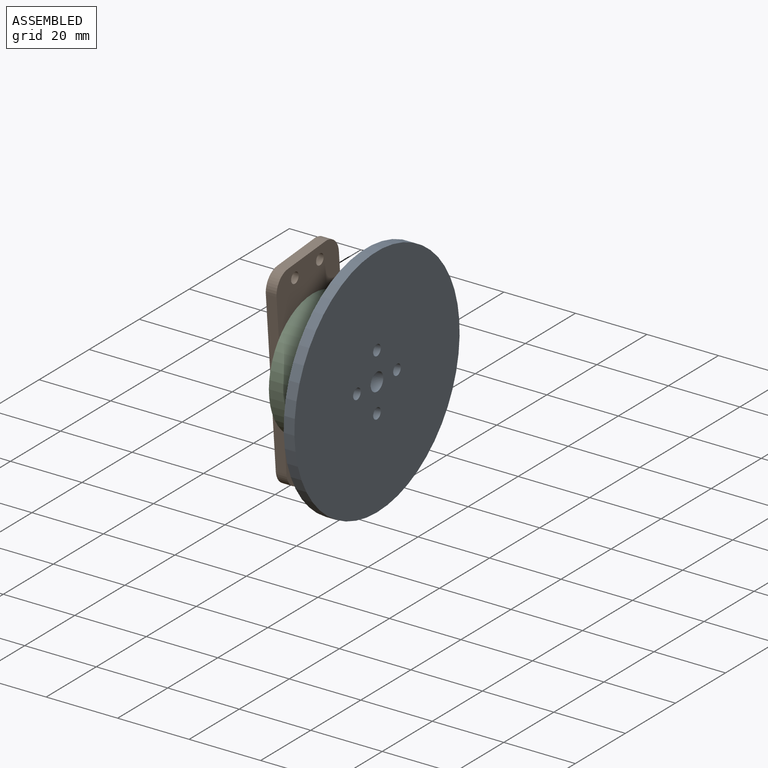
[diagram: assembled view]
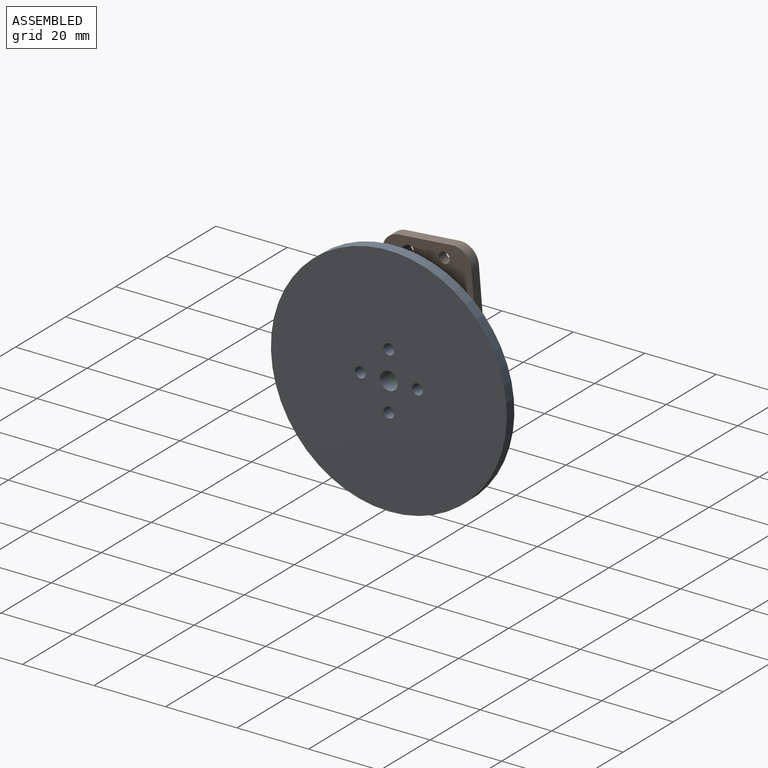
[diagram: assembled view, second angle]
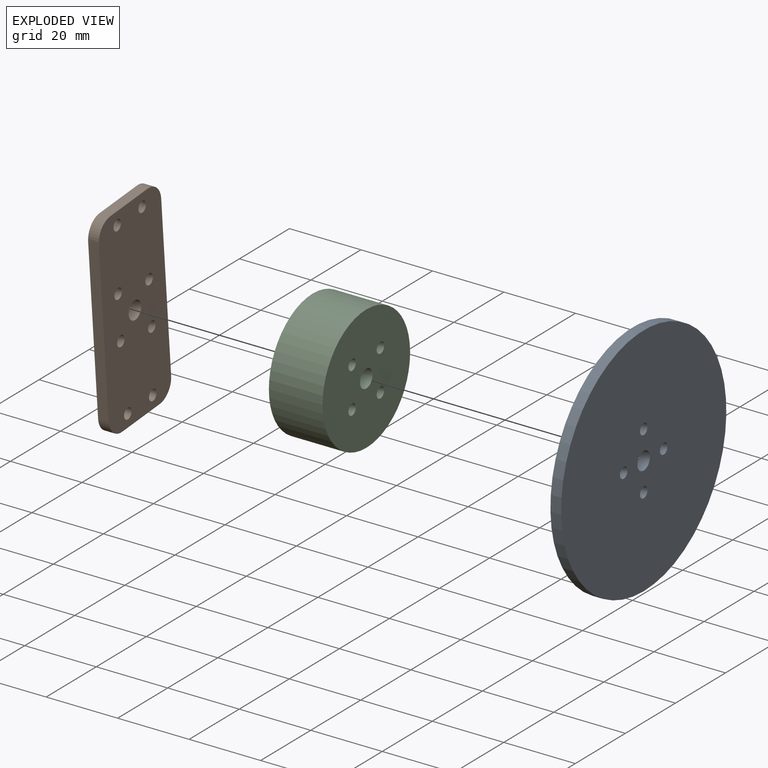
[diagram: exploded view]
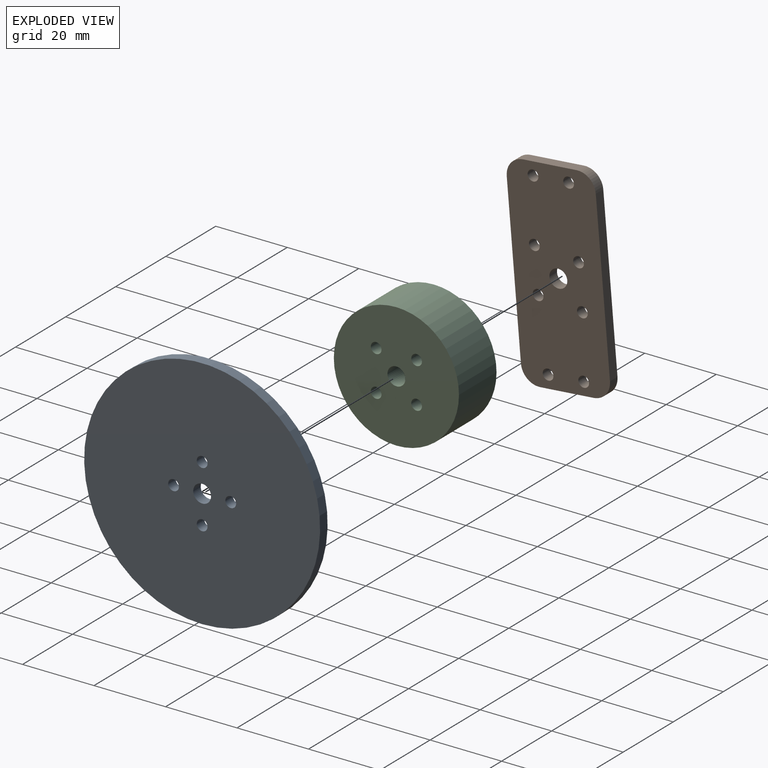
[diagram: exploded view, second angle]
ASSEMBLY  parts=3 mates=3
PART A: 8 faces, bbox 3x66x66 mm
  f0: cylinder r=1.5mm len=3mm, axis (-1,0,0), area 28.2mm2, adj f6,f7
  f1: cylinder r=1.5mm len=3mm, axis (-1,0,0), area 28.2mm2, adj f6,f7
  f2: cylinder r=1.5mm len=3mm, axis (-1,0,0), area 28.2mm2, adj f6,f7
  f3: cylinder r=1.5mm len=3mm, axis (-1,0,0), area 28.2mm2, adj f6,f7
  f4: cylinder r=2.5mm len=5mm, axis (-1,0,0), area 47.1mm2, adj f6,f7
  f5: cylinder r=33mm len=66mm, axis (-1,0,0), area 621.5mm2, adj f6,f7
  f6: plane 66x66mm, normal (1,0,0), area 3373.3mm2, adj f0,f1,f2,f3,f4,f5
  f7: plane 66x66mm, normal (-1,0,0), area 3373.3mm2, adj f0,f1,f2,f3,f4,f5
PART B: 19 faces, bbox 3x56.5x25 mm
  f0: plane 46.5x3mm, normal (0,0,1), area 139.4mm2, adj f1,f16,f17,f18
  f1: cylinder r=5mm len=5mm, axis (-1,0,0), area 23.5mm2, adj f0,f2,f17,f18
  f2: plane 15x3mm, normal (0,-1,0), area 45mm2, adj f1,f3,f17,f18
  f3: cylinder r=5mm len=5mm, axis (-1,0,0), area 23.5mm2, adj f2,f4,f17,f18
  f4: plane 46.5x3mm, normal (0,0,-1), area 139.4mm2, adj f3,f5,f17,f18
  f5: cylinder r=5mm len=5mm, axis (-1,0,0), area 23.5mm2, adj f4,f6,f17,f18
  f6: plane 15x3mm, normal (0,1,0), area 45mm2, adj f5,f16,f17,f18
  f7: cylinder r=1.5mm len=3mm, axis (-1,0,0), area 28.2mm2, adj f17,f18
  f8: cylinder r=1.5mm len=3mm, axis (-1,0,0), area 28.2mm2, adj f17,f18
  f9: cylinder r=1.5mm len=3mm, axis (-1,0,0), area 28.2mm2, adj f17,f18
  f10: cylinder r=1.5mm len=3mm, axis (-1,0,0), area 28.2mm2, adj f17,f18
  f11: cylinder r=2.5mm len=5mm, axis (-1,0,0), area 47.1mm2, adj f17,f18
  f12: cylinder r=1.5mm len=3mm, axis (-1,0,0), area 28.2mm2, adj f17,f18
  f13: cylinder r=1.5mm len=3mm, axis (-1,0,0), area 28.2mm2, adj f17,f18
  f14: cylinder r=1.5mm len=3mm, axis (-1,0,0), area 28.2mm2, adj f17,f18
  f15: cylinder r=1.5mm len=3mm, axis (-1,0,0), area 28.2mm2, adj f17,f18
  f16: cylinder r=5mm len=5mm, axis (-1,0,0), area 23.5mm2, adj f0,f6,f17,f18
  f17: plane 56.5x25mm, normal (1,0,0), area 1314.9mm2, adj f0,f1,f2,f3,f4,f5,f6,f7
  f18: plane 56.5x25mm, normal (-1,0,0), area 1314.9mm2, adj f0,f1,f2,f3,f4,f5,f6,f7
PART C: 20 faces, bbox 35x35x15 mm
  f0: plane 35x35mm, normal (0,0,-1), area 914.2mm2, adj f2,f3,f12,f14,f16,f18
  f1: plane 35x35mm, normal (0,0,1), area 914.2mm2, adj f2,f3,f4,f6,f8,f10
  f2: cylinder r=2.5mm len=15mm, axis (0,0,-1), area 235.6mm2, adj f0,f1
  f3: cylinder r=17.5mm len=35mm, axis (0,0,-1), area 1649.3mm2, adj f0,f1
  f4: cylinder r=1.5mm len=5mm, axis (0,0,-1), area 47.1mm2, adj f1,f5
  f5: plane 3x3mm, normal (0,0,1), area 7.1mm2, adj f4
  f6: cylinder r=1.5mm len=5mm, axis (0,0,-1), area 47.1mm2, adj f1,f7
  f7: plane 3x3mm, normal (0,0,1), area 7.1mm2, adj f6
  f8: cylinder r=1.5mm len=5mm, axis (0,0,-1), area 47.1mm2, adj f1,f9
  f9: plane 3x3mm, normal (0,0,1), area 7.1mm2, adj f8
  f10: cylinder r=1.5mm len=5mm, axis (0,0,-1), area 47.1mm2, adj f1,f11
  f11: plane 3x3mm, normal (0,0,1), area 7.1mm2, adj f10
  f12: cylinder r=1.5mm len=5mm, axis (0,0,-1), area 47.1mm2, adj f0,f13
  f13: plane 3x3mm, normal (0,0,-1), area 7.1mm2, adj f12
  f14: cylinder r=1.5mm len=5mm, axis (0,0,-1), area 47.1mm2, adj f0,f15
  f15: plane 3x3mm, normal (0,0,-1), area 7.1mm2, adj f14
  f16: cylinder r=1.5mm len=5mm, axis (0,0,-1), area 47.1mm2, adj f0,f17
  f17: plane 3x3mm, normal (0,0,-1), area 7.1mm2, adj f16
  f18: cylinder r=1.5mm len=5mm, axis (0,0,-1), area 47.1mm2, adj f0,f19
  f19: plane 3x3mm, normal (0,0,-1), area 7.1mm2, adj f18
PLACE A t=(-16.55,-37.02,10.86)mm
PLACE B rot(axis=(-1,0,0),85.1deg) t=(-34.55,-44.87,102.43)mm
PLACE C rot(axis=(-0.71,0,-0.71),180deg) t=(-31.55,-37.02,10.86)mm
MATE cylindrical C.f18 <-> B.f15  axis (-1,0,0) through (-31.55,-43.74,17.57)mm
MATE revolute C.f2 <-> A.f4  axis (1,0,0) through (-16.55,-37.02,10.86)mm
MATE revolute C.f2 <-> B.f11  axis (-1,0,0) through (-31.55,-37.02,10.86)mm
